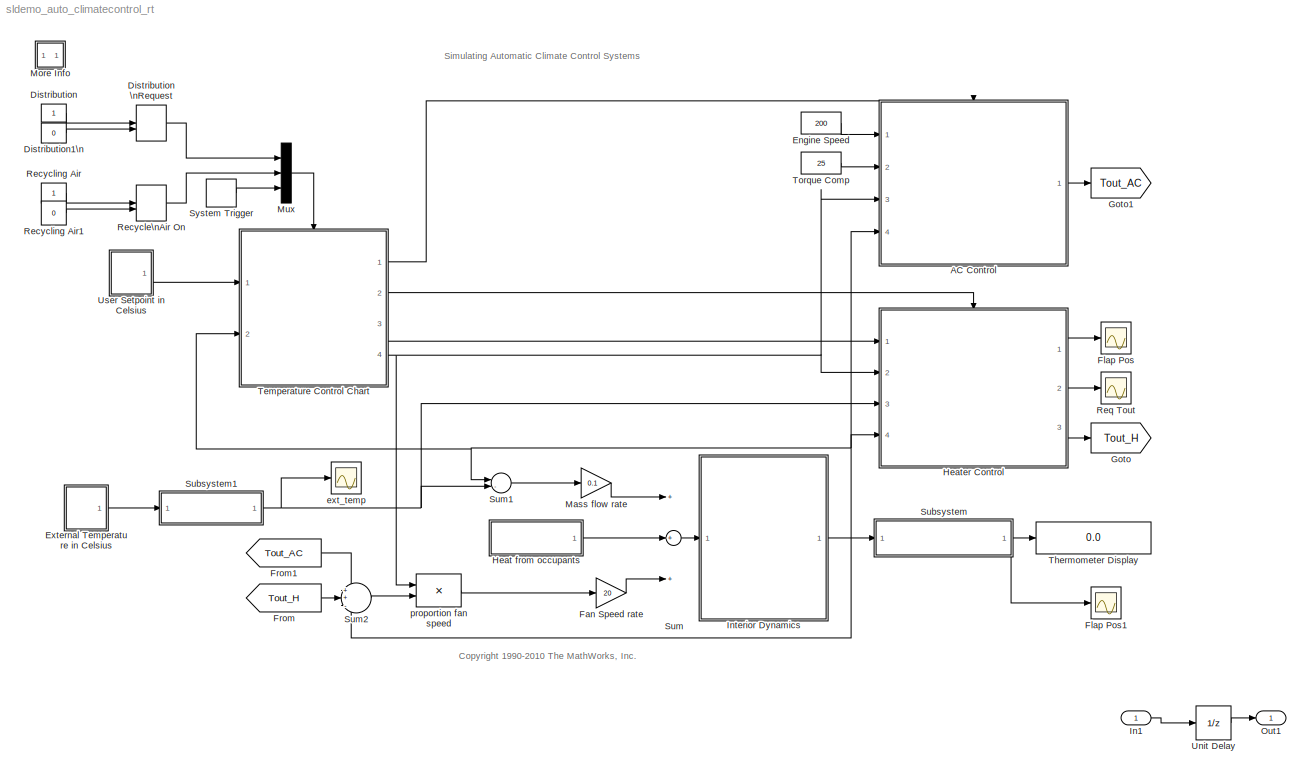
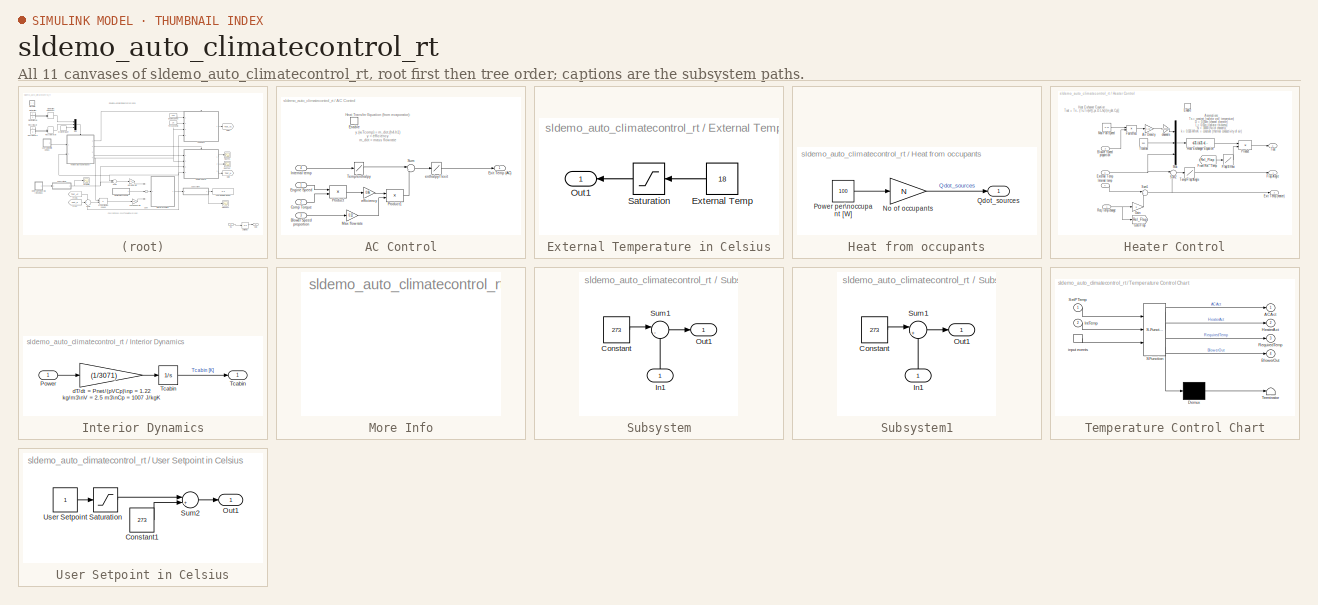
[diagram: thumbnail index - all 11 canvases of the model, root first then tree order]
MODEL sldemo_auto_climatecontrol_rt
KIND model
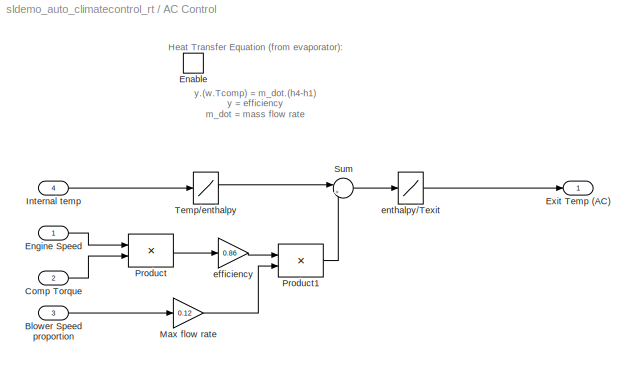
BLOCK [SubSystem] AC Control
  FunctionWithSeparateData = off
  MaskHideContents = off
  MinAlgLoopOccurrences = off
  Opaque = off
  Ports = [4, 1, 1]
  PropExecContextOutsideSubsystem = off
  RTWSystemCode = Auto
  RequestExecContextInheritance = off
  SID = 1
  TreatAsAtomicUnit = on
BLOCK [Inport] AC Control/Blower Speed proportion
  IconDisplay = Port number
  Port = 3
  SID = 4
BLOCK [Inport] AC Control/Comp Torque
  IconDisplay = Port number
  Port = 2
  SID = 3
BLOCK [EnablePort] AC Control/Enable
  Ports = []
  PropagateVarSize = During execution
  SID = 6
  StatesWhenEnabling = reset
  ZeroCross = off
BLOCK [Inport] AC Control/Engine Speed
  IconDisplay = Port number
  SID = 2
BLOCK [Outport] AC Control/Exit Temp (AC)
  IconDisplay = Port number
  InitialOutput = 0
  OutputWhenDisabled = reset
  SID = 14
BLOCK [Inport] AC Control/Internal temp
  IconDisplay = Port number
  Port = 4
  SID = 5
BLOCK [Gain] AC Control/Max flow rate
  Gain = 0.12
  SID = 7
BLOCK [Product] AC Control/Product
  Ports = [2, 1]
  RndMeth = Floor
  SID = 8
BLOCK [Product] AC Control/Product1
  Inputs = */
  Ports = [2, 1]
  RndMeth = Floor
  SID = 9
BLOCK [Sum] AC Control/Sum
  IconShape = round
  Inputs = |+-
  Ports = [2, 1]
  SID = 10
BLOCK [Lookup] AC Control/Temp//enthalpy
  InputValues = [220 230 240 250 260 270 280 285 290 295 300 305 310 315 320]
  SID = 11
  Table = [219.97 230.02 240.02 250.05 260.09 270.11 280.13 285.14 290.16 295.17 300.19 305.22 310.24 315.27 320.29]
BLOCK [Gain] AC Control/efficiency
  Gain = 0.86
  SID = 12
BLOCK [Lookup] AC Control/enthalpy//Texit
  InputValues = [ 219.97 230.02 240.02 250.05 260.09 270.11 280.13 285.14 290.16 295.17 300.19 305.22 310.24 315.27 320.29]
  SID = 13
  Table = [220 230 240 250 260 270 280 285 290 295 300 305 310 315 320]
BLOCK [Constant] Distribution 
  SID = 15
BLOCK [ManualSwitch] Distribution \nRequest
  SID = 16
BLOCK [Constant] Distribution1\n
  SID = 17
  Value = 0
BLOCK [Constant] Engine Speed
  SID = 18
  Value = 200
BLOCK [SubSystem] External Temperature in Celsius
  FunctionWithSeparateData = off
  MaskHideContents = off
  MinAlgLoopOccurrences = off
  Opaque = off
  Ports = [0, 1]
  PropExecContextOutsideSubsystem = off
  RTWSystemCode = Auto
  RequestExecContextInheritance = off
  SID = 19
BLOCK [Constant] External Temperature in Celsius/External Temp
  SID = 20
  Value = 18
BLOCK [Outport] External Temperature in Celsius/Out1
  IconDisplay = Port number
  SID = 22
BLOCK [Saturate] External Temperature in Celsius/Saturation
  InputPortMap = u0
  LowerLimit = -99
  Ports = [1, 1]
  SID = 21
  UpperLimit = 100
BLOCK [Gain] Fan Speed rate
  Gain = 20
  SID = 23
BLOCK [Scope] Flap Pos
  DataFormat = StructureWithTime
  Floating = off
  NumInputPorts = 1
  Ports = [1]
  SID = 24
  SampleTime = 0
  ShowLegends = off
  YMax = 70
  YMin = -40
BLOCK [Scope] Flap Pos1
  DataFormat = StructureWithTime
  Floating = off
  NumInputPorts = 1
  Ports = [1]
  SID = 94
  SampleTime = 0
  SaveName = ScopeData2
  ShowLegends = off
  YMax = 75
  YMin = -75
BLOCK [From] From
  CloseFcn = tagdialog Close
  GotoTag = Tout_H
  SID = 25
BLOCK [From] From1
  CloseFcn = tagdialog Close
  GotoTag = Tout_AC
  SID = 26
BLOCK [Goto] Goto
  GotoTag = Tout_H
  SID = 27
BLOCK [Goto] Goto1
  GotoTag = Tout_AC
  SID = 28
BLOCK [SubSystem] Heat from occupants
  AttributesFormatString = No. of occupants: %<N>
  FunctionWithSeparateData = off
  MaskHideContents = off
  MinAlgLoopOccurrences = off
  Opaque = off
  Ports = [0, 1]
  PropExecContextOutsideSubsystem = off
  RTWSystemCode = Auto
  RequestExecContextInheritance = off
  SID = 29
BLOCK [Gain] Heat from occupants/No of occupants
  Gain = N
  SID = 30
BLOCK [Constant] Heat from occupants/Power per\noccupant [W]
  SID = 31
  Value = 100
BLOCK [Outport] Heat from occupants/Qdot_sources
  IconDisplay = Port number
  SID = 32
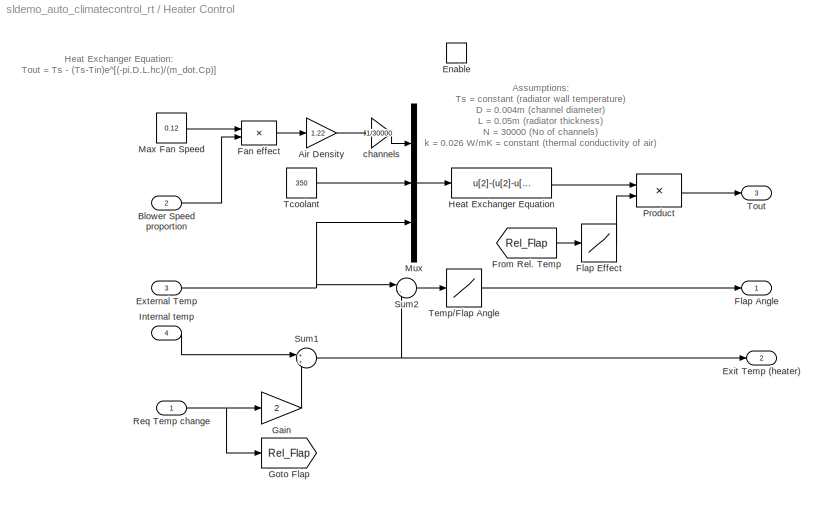
BLOCK [SubSystem] Heater Control
  FunctionWithSeparateData = off
  MaskHideContents = off
  MinAlgLoopOccurrences = off
  Opaque = off
  Ports = [4, 3, 1]
  PropExecContextOutsideSubsystem = off
  RTWSystemCode = Auto
  RequestExecContextInheritance = off
  SID = 33
  TreatAsAtomicUnit = on
BLOCK [Gain] Heater Control/Air Density
  Gain = 1.22
  SID = 39
BLOCK [Inport] Heater Control/Blower Speed proportion
  IconDisplay = Port number
  Port = 2
  SID = 35
BLOCK [EnablePort] Heater Control/Enable
  Ports = []
  PropagateVarSize = During execution
  SID = 38
  StatesWhenEnabling = reset
  ZeroCross = off
BLOCK [Outport] Heater Control/Exit Temp (heater)
  IconDisplay = Port number
  InitialOutput = 0
  OutputWhenDisabled = reset
  Port = 2
  SID = 55
BLOCK [Inport] Heater Control/External Temp
  IconDisplay = Port number
  Port = 3
  SID = 36
BLOCK [Product] Heater Control/Fan effect
  Ports = [2, 1]
  RndMeth = Floor
  SID = 40
BLOCK [Outport] Heater Control/Flap Angle
  IconDisplay = Port number
  InitialOutput = 0
  OutputWhenDisabled = reset
  SID = 54
BLOCK [Lookup] Heater Control/Flap Effect
  InputValues = [0 3 5 10 50  90 100 200 ]
  SID = 41
  Table = [0 300 100  10 10  10 3 1]
BLOCK [From] Heater Control/From Rel. Temp
  CloseFcn = tagdialog Close
  GotoTag = Rel_Flap
  SID = 42
BLOCK [Gain] Heater Control/Gain
  Gain = 2
  SID = 43
BLOCK [Goto] Heater Control/Goto Flap
  GotoTag = Rel_Flap
  SID = 44
BLOCK [Fcn] Heater Control/Heat Exchanger Equation
  Expr = u[2]-(u[2]-u[3])*exp(-(pi*0.004*0.05*23.8)/(u[1]*1007))
  SID = 45
BLOCK [Inport] Heater Control/Internal temp
  IconDisplay = Port number
  Port = 4
  SID = 37
BLOCK [Constant] Heater Control/Max Fan Speed
  SID = 46
  Value = 0.12
BLOCK [Mux] Heater Control/Mux
  DisplayOption = bar
  Inputs = 3
  Ports = [3, 1]
  SID = 47
BLOCK [Product] Heater Control/Product
  Ports = [2, 1]
  RndMeth = Floor
  SID = 48
BLOCK [Inport] Heater Control/Req Temp change
  IconDisplay = Port number
  SID = 34
BLOCK [Sum] Heater Control/Sum1
  IconShape = round
  Ports = [2, 1]
  SID = 49
BLOCK [Sum] Heater Control/Sum2
  IconShape = round
  Inputs = |-+
  Ports = [2, 1]
  SID = 50
BLOCK [Constant] Heater Control/Tcoolant 
  SID = 51
  Value = 350
BLOCK [Lookup] Heater Control/Temp//Flap Angle
  InputValues = [0 10 20 30 40 50 60 75 100 200]
  SID = 52
  Table = [0 20 30 45 60 75 90 90 90 90]
BLOCK [Outport] Heater Control/Tout
  IconDisplay = Port number
  InitialOutput = 0
  OutputWhenDisabled = reset
  Port = 3
  SID = 56
BLOCK [Gain] Heater Control/channels
  Gain = 1/30000
  SID = 53
BLOCK [Inport] In1
  IconDisplay = Port number
  SID = 97
BLOCK [SubSystem] Interior Dynamics
  FunctionWithSeparateData = off
  MaskHideContents = off
  MinAlgLoopOccurrences = off
  Opaque = off
  Ports = [1, 1]
  PropExecContextOutsideSubsystem = off
  RTWSystemCode = Auto
  RequestExecContextInheritance = off
  SID = 57
BLOCK [Inport] Interior Dynamics/Power
  IconDisplay = Port number
  SID = 58
BLOCK [Integrator] Interior Dynamics/Tcabin
  InitialCondition = 291
  Ports = [1, 1]
  SID = 59
  ZeroCross = off
BLOCK [Outport] Interior Dynamics/Tcabin 
  IconDisplay = Port number
  SID = 61
BLOCK [Gain] Interior Dynamics/dT//dt = Pnet//(pVCp)\np = 1.22 kg//m3\nV = 2.5 m3\nCp = 1007 J//kgK
  Gain = (1/3071)
  SID = 60
BLOCK [Gain] Mass flow rate
  Gain = 0.1
  SID = 62
BLOCK [SubSystem] More Info
  FunctionWithSeparateData = off
  MaskHideContents = off
  MinAlgLoopOccurrences = off
  Opaque = off
  OpenFcn = showdemo(bdroot(gcb))
  Ports = []
  PropExecContextOutsideSubsystem = off
  RTWSystemCode = Auto
  RequestExecContextInheritance = off
  SID = 63
BLOCK [Mux] Mux
  DisplayOption = bar
  Inputs = 3
  Ports = [3, 1]
  SID = 64
BLOCK [Outport] Out1
  IconDisplay = Port number
  SID = 98
BLOCK [ManualSwitch] Recycle\nAir On
  SID = 65
BLOCK [Constant] Recycling Air
  SID = 66
BLOCK [Constant] Recycling Air1
  SID = 67
  Value = 0
BLOCK [Scope] Req Tout
  DataFormat = StructureWithTime
  Floating = off
  NumInputPorts = 1
  Ports = [1]
  SID = 68
  SampleTime = 0
  SaveName = ScopeData1
  ShowLegends = off
  YMax = 400
  YMin = 0
BLOCK [SubSystem] Subsystem
  FunctionWithSeparateData = off
  MaskHideContents = off
  MinAlgLoopOccurrences = off
  Opaque = off
  Ports = [1, 1]
  PropExecContextOutsideSubsystem = off
  RTWSystemCode = Auto
  RequestExecContextInheritance = off
  SID = 69
BLOCK [Constant] Subsystem/Constant
  SID = 71
  Value = 273
BLOCK [Inport] Subsystem/In1
  IconDisplay = Port number
  SID = 70
BLOCK [Outport] Subsystem/Out1
  IconDisplay = Port number
  SID = 73
BLOCK [Sum] Subsystem/Sum1
  IconShape = round
  Inputs = |-+
  Ports = [2, 1]
  SID = 72
BLOCK [SubSystem] Subsystem1
  FunctionWithSeparateData = off
  MaskHideContents = off
  MinAlgLoopOccurrences = off
  Opaque = off
  Ports = [1, 1]
  PropExecContextOutsideSubsystem = off
  RTWSystemCode = Auto
  RequestExecContextInheritance = off
  SID = 74
BLOCK [Constant] Subsystem1/Constant
  SID = 76
  Value = 273
BLOCK [Inport] Subsystem1/In1
  IconDisplay = Port number
  SID = 75
BLOCK [Outport] Subsystem1/Out1
  IconDisplay = Port number
  SID = 78
BLOCK [Sum] Subsystem1/Sum1
  IconShape = round
  Inputs = |++
  Ports = [2, 1]
  SID = 77
BLOCK [Sum] Sum
  Inputs = +++
  Ports = [3, 1]
  SID = 79
BLOCK [Sum] Sum1
  IconShape = round
  Inputs = |-+
  Ports = [2, 1]
  SID = 80
BLOCK [Sum] Sum2
  IconShape = round
  Inputs = ++-
  Ports = [3, 1]
  SID = 81
BLOCK [DiscretePulseGenerator] System Trigger
  Period = 1
  Ports = [0, 1]
  PulseType = Time based
  PulseWidth = 50
  SID = 82
BLOCK [SubSystem] Temperature Control Chart
  ErrorFcn = Stateflow.Translate.translate
  FunctionWithSeparateData = off
  MaskHideContents = off
  MinAlgLoopOccurrences = off
  Opaque = off
  PermitHierarchicalResolution = ExplicitOnly
  Ports = [2, 4, 0, 1]
  PropExecContextOutsideSubsystem = off
  RTWSystemCode = Auto
  RequestExecContextInheritance = off
  SFBlockType = Chart
  SID = 83
  TreatAsAtomicUnit = on
BLOCK [Demux] Temperature Control Chart/ Demux 
  Outputs = 1
  Ports = [1, 1]
  SID = 83::16
BLOCK [S-Function] Temperature Control Chart/ SFunction 
  EnableBusSupport = off
  FunctionName = sf_sfun
  PortCounts = [3 5]
  Ports = [3, 5]
  SID = 83::15
  Tag = Stateflow S-Function sldemo_auto_climatecontrol_rt 1
BLOCK [Terminator] Temperature Control Chart/ Terminator 
  SID = 83::17
BLOCK [TriggerPort] Temperature Control Chart/ input events 
  Ports = [0, 1]
  SID = 83::3
  ShowOutputPort = on
  TriggerType = either
  ZeroCross = off
BLOCK [Outport] Temperature Control Chart/ACAct
  IconDisplay = Port number
  SID = 83::7
BLOCK [Outport] Temperature Control Chart/BlowerOut
  IconDisplay = Port number
  Port = 4
  SID = 83::10
BLOCK [Outport] Temperature Control Chart/HeaterAct
  IconDisplay = Port number
  Port = 2
  SID = 83::8
BLOCK [Inport] Temperature Control Chart/IntTemp
  IconDisplay = Port number
  Port = 2
  SID = 83::2
BLOCK [Outport] Temperature Control Chart/RequiredTemp
  IconDisplay = Port number
  Port = 3
  SID = 83::9
BLOCK [Inport] Temperature Control Chart/SetPTemp
  IconDisplay = Port number
  SID = 83::1
BLOCK [Display] Thermometer Display
  Decimation = 1
  Lockdown = off
  Ports = [1]
  SID = 84
BLOCK [Constant] Torque Comp
  SID = 85
  Value = 25
BLOCK [UnitDelay] Unit Delay
  InputProcessing = Elements as channels (sample based)
  SID = 96
  SampleTime = 0.2
BLOCK [SubSystem] User Setpoint in Celsius
  FunctionWithSeparateData = off
  MaskHideContents = off
  MinAlgLoopOccurrences = off
  Opaque = off
  Ports = [0, 1]
  PropExecContextOutsideSubsystem = off
  RTWSystemCode = Auto
  RequestExecContextInheritance = off
  SID = 86
BLOCK [Constant] User Setpoint in Celsius/Constant1
  SID = 87
  Value = 273
BLOCK [Outport] User Setpoint in Celsius/Out1
  IconDisplay = Port number
  SID = 91
BLOCK [Saturate] User Setpoint in Celsius/Saturation
  InputPortMap = u0
  LowerLimit = -99
  Ports = [1, 1]
  SID = 88
  UpperLimit = 100
BLOCK [Sum] User Setpoint in Celsius/Sum2
  IconShape = round
  Inputs = |++
  Ports = [2, 1]
  SID = 89
BLOCK [Constant] User Setpoint in Celsius/User Setpoint
  SID = 90
BLOCK [Scope] ext_temp
  DataFormat = StructureWithTime
  Floating = off
  NumInputPorts = 1
  Ports = [1]
  SID = 95
  SampleTime = 0
  SaveName = ScopeData3
  ShowLegends = off
  YMax = 75
  YMin = -75
BLOCK [Product] proportion fan speed
  Ports = [2, 1]
  RndMeth = Floor
  SID = 92
ANNOTATION (root): <copyright redacted>
ANNOTATION (root): Simulating Automatic Climate Control Systems
ANNOTATION AC Control: Heat Transfer Equation (from evaporator):\n\ny.(w.Tcomp) = m_dot.(h4-h1)\n\ny = efficiency\nm_dot = mass flow rate\nw = speed of the engine\nTcomp = compressor torque\nh4, h1 = enthalpy
ANNOTATION Heater Control: Assumptions:\nTs = constant (radiator wall temperature) \nD = 0.004m (channel diameter)\nL = 0.05m (radiator thickness)\nN = 30000 (No of channels)\nk = 0.026 W/mK = constant (thermal conductivity of air)\nCp = 1007 J/kgK = constant (specific heat of air)\nLaminar flow (hc = 3.66(k/D) = 23.8 W/m2K )
ANNOTATION Heater Control: Heat Exchanger Equation:\nTout = Ts - (Ts-Tin)e^[(-pi.D.L.hc)/(m_dot.Cp)]
LINE AC Control/Blower Speed proportion:1 -> AC Control/Max flow rate:1
LINE AC Control/Comp Torque:1 -> AC Control/Product:2
LINE AC Control/Engine Speed:1 -> AC Control/Product:1
LINE AC Control/Internal temp:1 -> AC Control/Temp//enthalpy:1
LINE AC Control/Max flow rate:1 -> AC Control/Product1:2
LINE AC Control/Product1:1 -> AC Control/Sum:2
LINE AC Control/Product:1 -> AC Control/efficiency:1
LINE AC Control/Sum:1 -> AC Control/enthalpy//Texit:1
LINE AC Control/Temp//enthalpy:1 -> AC Control/Sum:1
LINE AC Control/efficiency:1 -> AC Control/Product1:1
LINE AC Control/enthalpy//Texit:1 -> AC Control/Exit Temp (AC):1
LINE AC Control:1 -> Goto1:1
LINE Distribution :1 -> Distribution \nRequest:1
LINE Distribution \nRequest:1 -> Mux:1
LINE Distribution1\n:1 -> Distribution \nRequest:2
LINE Engine Speed:1 -> AC Control:1
LINE External Temperature in Celsius/External Temp:1 -> External Temperature in Celsius/Saturation:1
LINE External Temperature in Celsius/Saturation:1 -> External Temperature in Celsius/Out1:1
LINE External Temperature in Celsius:1 -> Subsystem1:1
LINE Fan Speed rate:1 -> Sum:3
LINE From1:1 -> Sum2:1
LINE From:1 -> Sum2:2
LINE Heat from occupants/No of occupants:1 -> Heat from occupants/Qdot_sources:1
LINE Heat from occupants/Power per\noccupant [W]:1 -> Heat from occupants/No of occupants:1
LINE Heat from occupants:1 -> Sum:2
LINE Heater Control/Air Density:1 -> Heater Control/channels:1
LINE Heater Control/Blower Speed proportion:1 -> Heater Control/Fan effect:2
NET Heater Control/External Temp:1 -> Heater Control/Mux:3, Heater Control/Sum2:1
LINE Heater Control/Fan effect:1 -> Heater Control/Air Density:1
LINE Heater Control/Flap Effect:1 -> Heater Control/Product:2
LINE Heater Control/From Rel. Temp:1 -> Heater Control/Flap Effect:1
LINE Heater Control/Gain:1 -> Heater Control/Sum1:2
LINE Heater Control/Heat Exchanger Equation:1 -> Heater Control/Product:1
LINE Heater Control/Internal temp:1 -> Heater Control/Sum1:1
LINE Heater Control/Max Fan Speed:1 -> Heater Control/Fan effect:1
LINE Heater Control/Mux:1 -> Heater Control/Heat Exchanger Equation:1
LINE Heater Control/Product:1 -> Heater Control/Tout:1
NET Heater Control/Req Temp change:1 -> Heater Control/Gain:1, Heater Control/Goto Flap:1
NET Heater Control/Sum1:1 -> Heater Control/Exit Temp (heater):1, Heater Control/Sum2:2
LINE Heater Control/Sum2:1 -> Heater Control/Temp//Flap Angle:1
LINE Heater Control/Tcoolant :1 -> Heater Control/Mux:2
LINE Heater Control/Temp//Flap Angle:1 -> Heater Control/Flap Angle:1
LINE Heater Control/channels:1 -> Heater Control/Mux:1
LINE Heater Control:1 -> Flap Pos:1
LINE Heater Control:2 -> Req Tout:1
LINE Heater Control:3 -> Goto:1
LINE In1:1 -> Unit Delay:1
LINE Interior Dynamics/Power:1 -> Interior Dynamics/dT//dt = Pnet//(pVCp)\np = 1.22 kg//m3\nV = 2.5 m3\nCp = 1007 J//kgK:1
LINE Interior Dynamics/Tcabin:1 -> Interior Dynamics/Tcabin :1
LINE Interior Dynamics/dT//dt = Pnet//(pVCp)\np = 1.22 kg//m3\nV = 2.5 m3\nCp = 1007 J//kgK:1 -> Interior Dynamics/Tcabin:1
NET Interior Dynamics:1 -> AC Control:4, Heater Control:4, Subsystem:1, Sum1:1, Sum2:3, Temperature Control Chart:2
LINE Mass flow rate:1 -> Sum:1
LINE Mux:1 -> Temperature Control Chart:trigger
LINE Recycle\nAir On:1 -> Mux:2
LINE Recycling Air1:1 -> Recycle\nAir On:2
LINE Recycling Air:1 -> Recycle\nAir On:1
LINE Subsystem/Constant:1 -> Subsystem/Sum1:1
LINE Subsystem/In1:1 -> Subsystem/Sum1:2
LINE Subsystem/Sum1:1 -> Subsystem/Out1:1
LINE Subsystem1/Constant:1 -> Subsystem1/Sum1:1
LINE Subsystem1/In1:1 -> Subsystem1/Sum1:2
LINE Subsystem1/Sum1:1 -> Subsystem1/Out1:1
NET Subsystem1:1 -> Heater Control:3, Sum1:2, ext_temp:1
NET Subsystem:1 -> Flap Pos1:1, Thermometer Display:1
LINE Sum1:1 -> Mass flow rate:1
LINE Sum2:1 -> proportion fan speed:2
LINE Sum:1 -> Interior Dynamics:1
LINE System Trigger:1 -> Mux:3
LINE Temperature Control Chart/ Demux :1 -> Temperature Control Chart/ Terminator :1
LINE Temperature Control Chart/ SFunction :1 -> Temperature Control Chart/ Demux :1
LINE Temperature Control Chart/ SFunction :2 -> Temperature Control Chart/ACAct:1
LINE Temperature Control Chart/ SFunction :3 -> Temperature Control Chart/HeaterAct:1
LINE Temperature Control Chart/ SFunction :4 -> Temperature Control Chart/RequiredTemp:1
LINE Temperature Control Chart/ SFunction :5 -> Temperature Control Chart/BlowerOut:1
LINE Temperature Control Chart/ input events :1 -> Temperature Control Chart/ SFunction :3
LINE Temperature Control Chart/IntTemp:1 -> Temperature Control Chart/ SFunction :2
LINE Temperature Control Chart/SetPTemp:1 -> Temperature Control Chart/ SFunction :1
LINE Temperature Control Chart:1 -> AC Control:enable
LINE Temperature Control Chart:2 -> Heater Control:enable
LINE Temperature Control Chart:3 -> Heater Control:1
NET Temperature Control Chart:4 -> AC Control:3, Heater Control:2, proportion fan speed:1
LINE Torque Comp:1 -> AC Control:2
LINE Unit Delay:1 -> Out1:1
LINE User Setpoint in Celsius/Constant1:1 -> User Setpoint in Celsius/Sum2:2
LINE User Setpoint in Celsius/Saturation:1 -> User Setpoint in Celsius/Sum2:1
LINE User Setpoint in Celsius/Sum2:1 -> User Setpoint in Celsius/Out1:1
LINE User Setpoint in Celsius/User Setpoint:1 -> User Setpoint in Celsius/Saturation:1
LINE User Setpoint in Celsius:1 -> Temperature Control Chart:1
LINE proportion fan speed:1 -> Fan Speed rate:1
note: NET lines group one-source signal fan-out (src -> all destinations, sorted); 1:1 wires keep LINE
CHART Temperature Control Chart states=21 transitions=26
  STATE_LABEL 'Blower_1\\nentry:BlowerOut=0.2;'
  STATE_LABEL 'Blower_2\\nentry:BlowerOut=0.4;'
  STATE_LABEL 'Blower_3\\nentry:BlowerOut=0.6;'
  STATE_LABEL 'Blower_off\\nentry:BlowerOut=0.0;'
  STATE_LABEL 'Blower_5\\nentry:BlowerOut=1.0;'
  STATE_LABEL 'Blower_4\\nentry:BlowerOut=0.8;'
  STATE_LABEL 'Blower\\nduring:setpoint_calc();'
  STATE_LABEL 'Recyc_Air'
  STATE_LABEL 'Recyc_on'
  STATE_LABEL 'Recyc_off'
  STATE_LABEL 'Heater_AC'
  STATE_LABEL 'H_offAC_off'
  STATE_LABEL 'HeaterAct'
  STATE_LABEL 'ACAct'
  STATE_LABEL 'AirDist'
  STATE_LABEL 'Face'
  STATE_LABEL 'Feet'
  STATE_LABEL 'Defrost'
  STATE_LABEL 'Blower_on'
  STATE_LABEL 'b = in_temp_range(minTemp,maxTemp)'
  STATE_LABEL 'setpoint_calc()'
